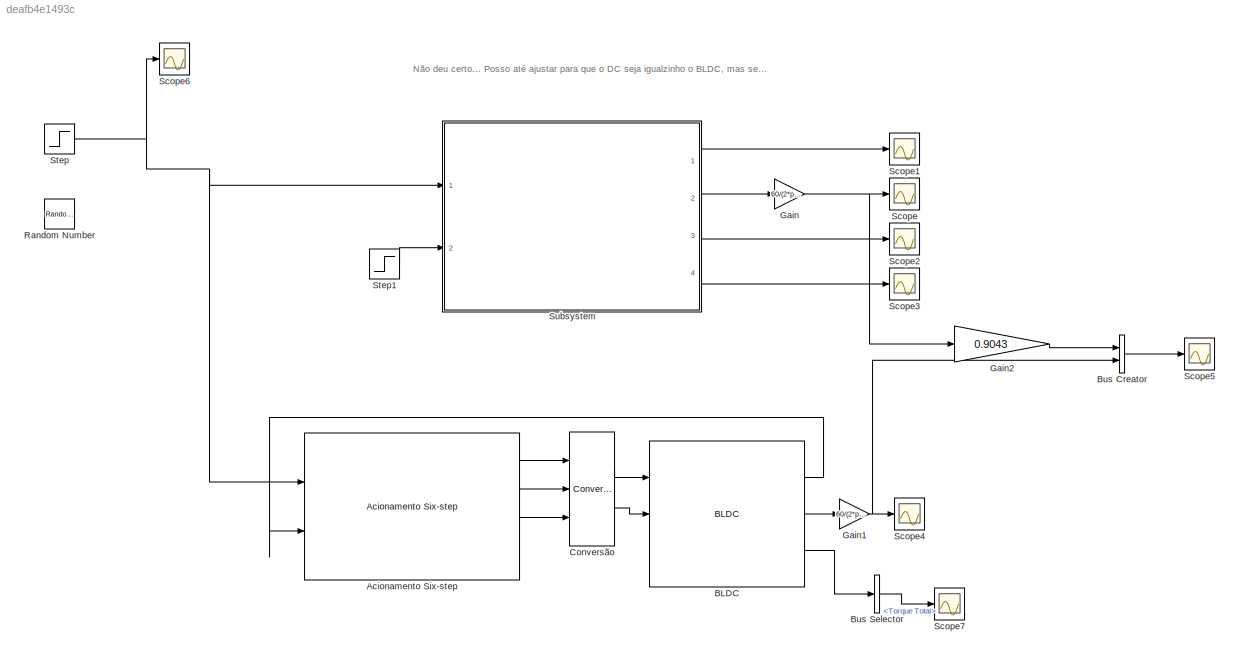
MODEL slx_deafb4e1493c
KIND model
BLOCK [Reference] Acionamento Six-step  REF=BLDC/Acionamento Six-step
  P = 8
  Ports = [2, 4]
  SourceBlock = BLDC/Acionamento Six-step
  SourceType = Acionamento six-step
BLOCK [Reference] BLDC  REF=BLDC/BLDC
  J = 3.84e-7
  Kd = 0
  Ke = 11.3e-3
  Kt = 11.3e-3
  L = 2.35e-3/sqrt(3)
  P = 8
  Ports = [3, 3]
  R = 23.9/sqrt(3)
  SourceBlock = BLDC/BLDC
  SourceType = Simulador de um motor BLDC
  default_fcem = on
  fcem_a = fcem_a
  fcem_b = fcem_b
  fcem_c = fcem_c
BLOCK [BusCreator] Bus Creator
  DisplayOption = bar
  Inputs = 2
  Ports = [2, 1]
BLOCK [BusSelector] Bus Selector
  OutputSignals = Torque Total
  Ports = [1, 1]
BLOCK [Reference] Conversão  REF=BLDC/Conversão
  Ports = [3, 2]
  SourceBlock = BLDC/Conversão
  SourceType = SubSystem
BLOCK [Gain] Gain
  Gain = 60/(2*pi)
  OutDataTypeStr = Inherit: Inherit via internal rule
  ParamDataTypeStr = Inherit: Inherit via internal rule
  SaturateOnIntegerOverflow = off
BLOCK [Gain] Gain1
  Gain = 60/(2*pi)
  OutDataTypeStr = Inherit: Inherit via internal rule
  ParamDataTypeStr = Inherit: Inherit via internal rule
  SaturateOnIntegerOverflow = off
BLOCK [Gain] Gain2
  Gain = 0.9043
  OutDataTypeStr = Inherit: Inherit via internal rule
  ParamDataTypeStr = Inherit: Inherit via internal rule
  SaturateOnIntegerOverflow = off
BLOCK [RandomNumber] Random Number
  SampleTime = 0.1
  Variance = 60
BLOCK [Scope] Scope
  DataFormat = StructureWithTime
  Floating = off
  LimitDataPoints = off
  NumInputPorts = 1
  Ports = [1]
  SampleTime = 0
  ShowLegends = off
  ZoomMode = yonly
BLOCK [Scope] Scope1
  DataFormat = StructureWithTime
  Floating = off
  LimitDataPoints = off
  NumInputPorts = 1
  Ports = [1]
  SampleTime = 0
  SaveName = ScopeData1
  ShowLegends = off
  ZoomMode = yonly
BLOCK [Scope] Scope2
  DataFormat = StructureWithTime
  Floating = off
  LimitDataPoints = off
  NumInputPorts = 1
  Ports = [1]
  SampleTime = 0
  SaveName = ScopeData2
  ShowLegends = off
BLOCK [Scope] Scope3
  DataFormat = StructureWithTime
  Floating = off
  LimitDataPoints = off
  NumInputPorts = 1
  Ports = [1]
  SampleTime = 0
  SaveName = ScopeData3
  ShowLegends = off
BLOCK [Scope] Scope4
  DataFormat = StructureWithTime
  Floating = off
  LimitDataPoints = off
  NumInputPorts = 1
  Ports = [1]
  SampleTime = 0
  SaveName = ScopeData4
  ShowLegends = off
  ZoomMode = yonly
BLOCK [Scope] Scope5
  DataFormat = StructureWithTime
  Floating = off
  LimitDataPoints = off
  NumInputPorts = 1
  Ports = [1]
  SampleTime = 0
  SaveName = ScopeData5
  ShowLegends = off
  TimeRange = 3
  YMax = 4000
  YMin = -3000
BLOCK [Scope] Scope6
  DataFormat = StructureWithTime
  Floating = off
  LimitDataPoints = off
  NumInputPorts = 1
  Ports = [1]
  SampleTime = 0
  SaveName = ScopeData6
  ShowLegends = off
  ZoomMode = yonly
BLOCK [Scope] Scope7
  DataFormat = StructureWithTime
  Floating = off
  LimitDataPoints = off
  NumInputPorts = 1
  Ports = [1]
  SampleTime = 0
  SaveName = ScopeData7
  ShowLegends = off
  ZoomMode = xonly
BLOCK [Step] Step
  After = 12
  SampleTime = 0
  Time = 0
BLOCK [Step] Step1
  After = 0
  SampleTime = 0
  Time = 0
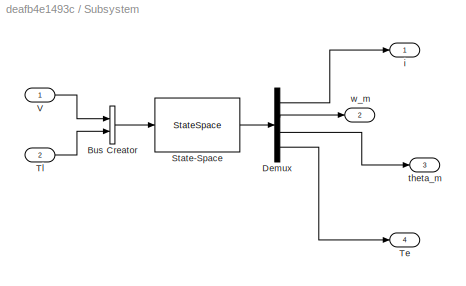
BLOCK [SubSystem] Subsystem
  FunctionWithSeparateData = off
  MaskHideContents = off
  MinAlgLoopOccurrences = off
  Opaque = off
  Ports = [2, 4]
  PropExecContextOutsideSubsystem = off
  RTWSystemCode = Auto
  RequestExecContextInheritance = off
BLOCK [BusCreator] Subsystem/Bus Creator
  DisplayOption = bar
  Inputs = 2
  Ports = [2, 1]
BLOCK [Demux] Subsystem/Demux
  DisplayOption = bar
  Ports = [1, 4]
BLOCK [StateSpace] Subsystem/State-Space
  A = A
  B = B
  C = C
  D = D
BLOCK [Outport] Subsystem/Te
  IconDisplay = Port number
  Port = 4
BLOCK [Inport] Subsystem/Tl
  IconDisplay = Port number
  Port = 2
BLOCK [Inport] Subsystem/V
  IconDisplay = Port number
BLOCK [Outport] Subsystem/i
  IconDisplay = Port number
BLOCK [Outport] Subsystem/theta_m
  IconDisplay = Port number
  Port = 3
BLOCK [Outport] Subsystem/w_m
  IconDisplay = Port number
  Port = 2
ANNOTATION (root): Não deu certo... Posso até ajustar para que o DC seja igualzinho o BLDC, mas se eu mudar R, L, ou outros parametros eles ja nao serao
LINE Acionamento Six-step:1 -> Conversão:1
LINE Acionamento Six-step:2 -> Conversão:2
LINE Acionamento Six-step:3 -> Conversão:3
LINE BLDC:1 -> Acionamento Six-step:2
LINE BLDC:2 -> Gain1:1
LINE BLDC:3 -> Bus Selector:1
LINE Bus Creator:1 -> Scope5:1
LINE Bus Selector:1 -> Scope7:1
LINE Conversão:1 -> BLDC:1
LINE Conversão:2 -> BLDC:2
NET Gain1:1 -> Bus Creator:2, Scope4:1
LINE Gain2:1 -> Bus Creator:1
NET Gain:1 -> Gain2:1, Scope:1
LINE Step1:1 -> Subsystem:2
NET Step:1 -> Acionamento Six-step:1, Scope6:1, Subsystem:1
LINE Subsystem/Bus Creator:1 -> Subsystem/State-Space:1
LINE Subsystem/Demux:1 -> Subsystem/i:1
LINE Subsystem/Demux:2 -> Subsystem/w_m:1
LINE Subsystem/Demux:3 -> Subsystem/theta_m:1
LINE Subsystem/Demux:4 -> Subsystem/Te:1
LINE Subsystem/State-Space:1 -> Subsystem/Demux:1
LINE Subsystem/Tl:1 -> Subsystem/Bus Creator:2
LINE Subsystem/V:1 -> Subsystem/Bus Creator:1
LINE Subsystem:1 -> Scope1:1
LINE Subsystem:2 -> Gain:1
LINE Subsystem:3 -> Scope2:1
LINE Subsystem:4 -> Scope3:1
note: NET lines group one-source signal fan-out (src -> all destinations, sorted); 1:1 wires keep LINE
